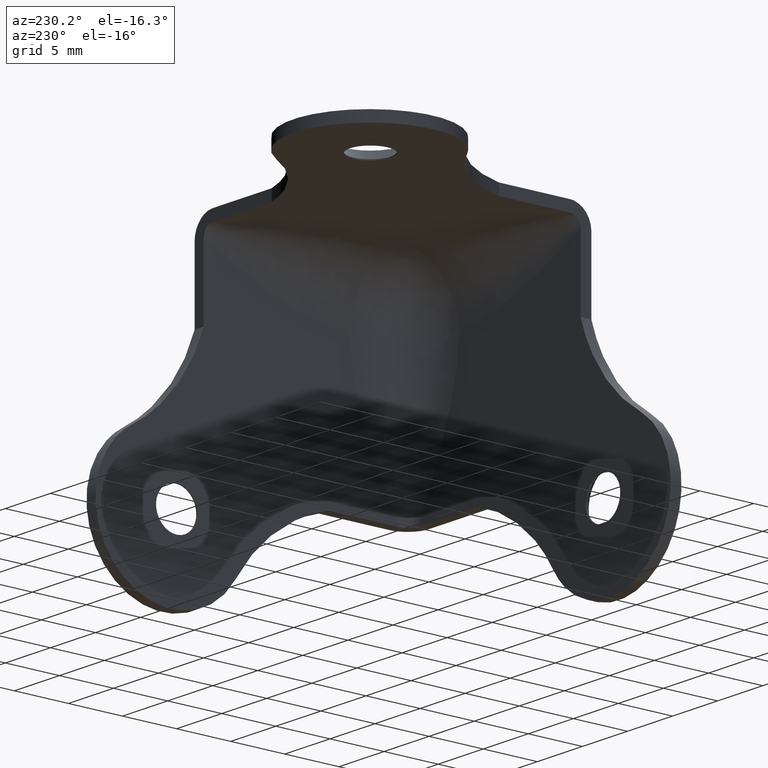
[diagram: clean part render]
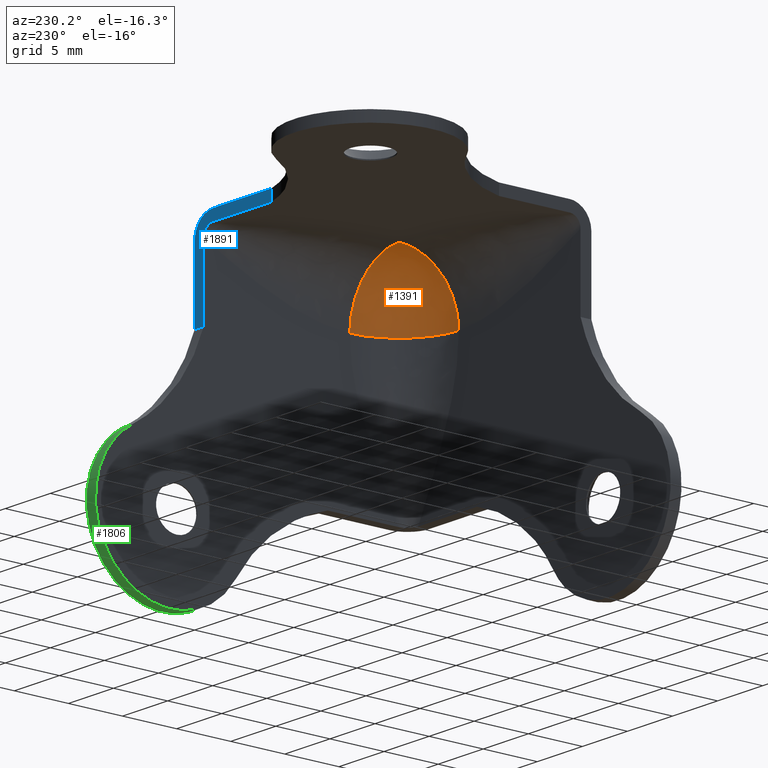
[diagram: same view with three faces highlighted in distinct colors, each labeled with its STEP entity id]
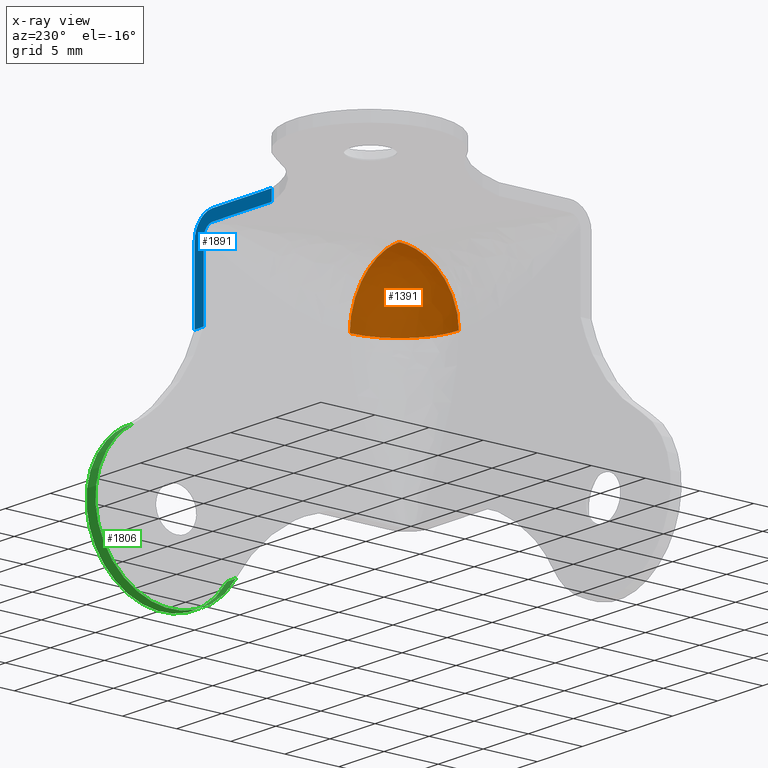
[diagram: x-ray of the same camera — body ghosted, the three highlighted faces saturated]
A machine part, auxiliary view with three faces highlighted in distinct colors.
The next image is the same camera in x-ray (body ghosted, the three faces saturated) — at least one of them is partly hidden behind the body in this view.
Their STEP definitions:

[orange] entity #1391 — the highlighted face is a freeform B-spline surface patch.
#1302=CARTESIAN_POINT('',(-1.0,6.500000000000000,23.500000000000000));
#1303=VERTEX_POINT('',#1302);
#1311=CARTESIAN_POINT('',(-6.500000000000000,6.500000000000000,29.0));
#1312=VERTEX_POINT('',#1311);
#1313=CARTESIAN_POINT('',(-1.0,6.500000000000000,23.500000000000000));
#1314=CARTESIAN_POINT('',(-1.0,6.499999999999999,29.000000000000014));
#1315=CARTESIAN_POINT('',(-6.500000000000000,6.500000000000000,29.0));
#1323=(BOUNDED_CURVE()B_SPLINE_CURVE(2,(#1313,#1314,#1315),.UNSPECIFIED.,.F.,.U.)CURVE()GEOMETRIC_REPRESENTATION_ITEM()QUASI_UNIFORM_CURVE()RATIONAL_B_SPLINE_CURVE((1.0,0.707106781186548,1.0))REPRESENTATION_ITEM(''));
#1324=EDGE_CURVE('',#1303,#1312,#1323,.T.);
#1336=CARTESIAN_POINT('',(-7.485384025050631,1.090361363582088,23.378229122736446));
#1337=CARTESIAN_POINT('',(-6.261903519994567,0.873085130826185,23.130121842651114));
#1338=CARTESIAN_POINT('',(-2.972390697075347,1.969589320634512,21.579430925472661));
#1339=CARTESIAN_POINT('',(-2.659504530841130,4.153528434755771,20.338565872128530));
#1340=CARTESIAN_POINT('',(-6.928036300714799,0.923685963802347,26.272616897139937));
#1341=CARTESIAN_POINT('',(-5.227333166479247,0.615148061266536,26.217044155740130));
#1342=CARTESIAN_POINT('',(-0.798890316061296,2.091295564318619,24.129456578169052));
#1343=CARTESIAN_POINT('',(-1.010627667116836,4.787874755080664,21.870790908376790));
#1344=CARTESIAN_POINT('',(-6.928036300714799,4.900294230256074,29.084503893503356));
#1345=CARTESIAN_POINT('',(-5.227333166479247,4.974301604465713,29.299431542668810));
#1346=CARTESIAN_POINT('',(-0.798890316061296,6.450449107517795,27.211843965097732));
#1347=CARTESIAN_POINT('',(-1.010627667116836,7.937848155358464,24.098158717736265));
#1348=CARTESIAN_POINT('',(-7.201180711222537,6.793835252277758,28.947201708650812));
#1349=CARTESIAN_POINT('',(-5.740257498975113,7.017336073658702,29.123200103431728));
#1350=CARTESIAN_POINT('',(-1.876478928883100,8.305262164440066,27.301797769054033));
#1351=CARTESIAN_POINT('',(-1.797631929250203,9.185228458760591,24.462955165859249));
#1359=(BOUNDED_SURFACE()B_SPLINE_SURFACE(2,2,((#1336,#1340,#1344,#1348),(#1337,#1341,#1345,#1349),(#1338,#1342,#1346,#1350),(#1339,#1343,#1347,#1351)),.UNSPECIFIED.,.F.,.F.,.U.)B_SPLINE_SURFACE_WITH_KNOTS((3,1,3),(3,1,3),(0.0,3.216859003605231,9.642834564198244),(0.0,6.102808453599101,10.067743276920060),.UNSPECIFIED.)GEOMETRIC_REPRESENTATION_ITEM()RATIONAL_B_SPLINE_SURFACE(((1.442429492700841,1.096198883850985,1.096198883850985,1.242341906822535),(1.346230608849856,1.0,1.0,1.146143022971550),(1.346230608849856,1.0,1.0,1.146143022971550),(1.730100562423031,1.383869953573175,1.383869953573175,1.530012976544725)))REPRESENTATION_ITEM('')SURFACE());
#1360=CARTESIAN_POINT('',(-6.500000000000000,1.0,23.500000000000000));
#1361=VERTEX_POINT('',#1360);
#1362=CARTESIAN_POINT('',(-1.0,6.500000000000000,23.500000000000000));
#1363=CARTESIAN_POINT('',(-1.0,1.0,23.499999999999957));
#1364=CARTESIAN_POINT('',(-6.500000000000000,1.0,23.500000000000000));
#1372=(BOUNDED_CURVE()B_SPLINE_CURVE(2,(#1362,#1363,#1364),.UNSPECIFIED.,.F.,.U.)CURVE()GEOMETRIC_REPRESENTATION_ITEM()QUASI_UNIFORM_CURVE()RATIONAL_B_SPLINE_CURVE((1.0,0.707106781186548,1.0))REPRESENTATION_ITEM(''));
#1373=EDGE_CURVE('',#1303,#1361,#1372,.T.);
#1374=ORIENTED_EDGE('',*,*,#1373,.T.);
#1375=CARTESIAN_POINT('',(-6.500000000000000,1.0,23.500000000000000));
#1376=CARTESIAN_POINT('',(-6.499999999999999,1.0,29.000000000000014));
#1377=CARTESIAN_POINT('',(-6.500000000000000,6.500000000000000,29.0));
#1385=(BOUNDED_CURVE()B_SPLINE_CURVE(2,(#1375,#1376,#1377),.UNSPECIFIED.,.F.,.U.)CURVE()GEOMETRIC_REPRESENTATION_ITEM()QUASI_UNIFORM_CURVE()RATIONAL_B_SPLINE_CURVE((1.0,0.707106781186548,1.0))REPRESENTATION_ITEM(''));
#1386=EDGE_CURVE('',#1361,#1312,#1385,.T.);
#1387=ORIENTED_EDGE('',*,*,#1386,.T.);
#1388=ORIENTED_EDGE('',*,*,#1324,.F.);
#1389=EDGE_LOOP('',(#1374,#1387,#1388));
#1390=FACE_OUTER_BOUND('',#1389,.T.);
#1391=ADVANCED_FACE('',(#1390),#1359,.F.);

[blue] entity #1891 — the highlighted face is a freeform B-spline surface patch.
#1048=CARTESIAN_POINT('',(-2.0,20.0,30.0));
#1049=VERTEX_POINT('',#1048);
#1050=CARTESIAN_POINT('',(0.0,20.0,28.0));
#1051=VERTEX_POINT('',#1050);
#1052=CARTESIAN_POINT('',(-2.000000000000000,20.000000000000007,30.0));
#1053=CARTESIAN_POINT('',(0.0,20.0,29.999999999999947));
#1054=CARTESIAN_POINT('',(0.0,20.000000000000007,28.0));
#1062=(BOUNDED_CURVE()B_SPLINE_CURVE(2,(#1052,#1053,#1054),.UNSPECIFIED.,.F.,.U.)CURVE()GEOMETRIC_REPRESENTATION_ITEM()QUASI_UNIFORM_CURVE()RATIONAL_B_SPLINE_CURVE((1.000000000000000,0.707106781186548,1.000000000000000))REPRESENTATION_ITEM(''));
#1063=EDGE_CURVE('',#1049,#1051,#1062,.T.);
#1285=CARTESIAN_POINT('',(-1.0,20.0,28.0));
#1286=VERTEX_POINT('',#1285);
#1287=CARTESIAN_POINT('',(-2.0,20.0,29.0));
#1288=VERTEX_POINT('',#1287);
#1289=CARTESIAN_POINT('',(-1.0,19.999999999999950,27.999999999999979));
#1290=CARTESIAN_POINT('',(-1.0,19.999999999999915,29.000000000000014));
#1291=CARTESIAN_POINT('',(-2.000000000000028,19.999999999999950,29.0));
#1299=(BOUNDED_CURVE()B_SPLINE_CURVE(2,(#1289,#1290,#1291),.UNSPECIFIED.,.F.,.U.)CURVE()GEOMETRIC_REPRESENTATION_ITEM()QUASI_UNIFORM_CURVE()RATIONAL_B_SPLINE_CURVE((1.0,0.707106781186548,1.0))REPRESENTATION_ITEM(''));
#1300=EDGE_CURVE('',#1286,#1288,#1299,.T.);
#1518=CARTESIAN_POINT('',(-8.539727915194000,19.999999597604749,30.0));
#1519=VERTEX_POINT('',#1518);
#1533=CARTESIAN_POINT('',(-8.539727915194000,19.999999597604749,29.0));
#1534=VERTEX_POINT('',#1533);
#1535=CARTESIAN_POINT('',(-8.539727915194000,19.999999597604749,29.0));
#1536=CARTESIAN_POINT('',(-8.539727915194000,19.999999597604749,30.0));
#1537=QUASI_UNIFORM_CURVE('',1,(#1535,#1536),.UNSPECIFIED.,.F.,.U.);
#1538=EDGE_CURVE('',#1534,#1519,#1537,.T.);
#1821=CARTESIAN_POINT('',(0.0,20.0,21.460272000000000));
#1822=VERTEX_POINT('',#1821);
#1837=CARTESIAN_POINT('',(-1.0,20.0,21.460272000000000));
#1838=VERTEX_POINT('',#1837);
#1852=CARTESIAN_POINT('',(-1.0,20.0,21.460272000000000));
#1853=CARTESIAN_POINT('',(0.0,20.0,21.460272000000000));
#1854=QUASI_UNIFORM_CURVE('',1,(#1852,#1853),.UNSPECIFIED.,.F.,.U.);
#1855=EDGE_CURVE('',#1838,#1822,#1854,.T.);
#1860=CARTESIAN_POINT('',(-8.966287628665713,20.0,30.426559397048351));
#1861=CARTESIAN_POINT('',(-8.966287628665713,20.0,21.033712373898290));
#1862=CARTESIAN_POINT('',(0.426559637120597,20.0,30.426559397048351));
#1863=CARTESIAN_POINT('',(0.426559637120597,20.0,21.033712373898290));
#1864=B_SPLINE_SURFACE_WITH_KNOTS('',1,1,((#1860,#1862),(#1861,#1863)),.UNSPECIFIED.,.F.,.F.,.U.,(2,2),(2,2),(0.0,9.392847023150058),(0.0,9.392847265786310),.UNSPECIFIED.);
#1865=CARTESIAN_POINT('',(-8.539727915194000,19.999999597604749,30.0));
#1866=CARTESIAN_POINT('',(-2.0,20.0,30.0));
#1867=QUASI_UNIFORM_CURVE('',1,(#1865,#1866),.UNSPECIFIED.,.F.,.U.);
#1868=EDGE_CURVE('',#1519,#1049,#1867,.T.);
#1869=ORIENTED_EDGE('',*,*,#1868,.T.);
#1870=ORIENTED_EDGE('',*,*,#1063,.T.);
#1871=CARTESIAN_POINT('',(0.0,20.0,28.0));
#1872=CARTESIAN_POINT('',(0.0,20.0,21.460272000000000));
#1873=QUASI_UNIFORM_CURVE('',1,(#1871,#1872),.UNSPECIFIED.,.F.,.U.);
#1874=EDGE_CURVE('',#1051,#1822,#1873,.T.);
#1875=ORIENTED_EDGE('',*,*,#1874,.T.);
#1876=ORIENTED_EDGE('',*,*,#1855,.F.);
#1877=CARTESIAN_POINT('',(-1.0,20.0,28.0));
#1878=CARTESIAN_POINT('',(-1.0,20.0,21.460272000000000));
#1879=QUASI_UNIFORM_CURVE('',1,(#1877,#1878),.UNSPECIFIED.,.F.,.U.);
#1880=EDGE_CURVE('',#1286,#1838,#1879,.T.);
#1881=ORIENTED_EDGE('',*,*,#1880,.F.);
#1882=ORIENTED_EDGE('',*,*,#1300,.T.);
#1883=CARTESIAN_POINT('',(-8.539727915194000,19.999999597604749,29.0));
#1884=CARTESIAN_POINT('',(-2.0,20.0,29.0));
#1885=QUASI_UNIFORM_CURVE('',1,(#1883,#1884),.UNSPECIFIED.,.F.,.U.);
#1886=EDGE_CURVE('',#1534,#1288,#1885,.T.);
#1887=ORIENTED_EDGE('',*,*,#1886,.F.);
#1888=ORIENTED_EDGE('',*,*,#1538,.T.);
#1889=EDGE_LOOP('',(#1869,#1870,#1875,#1876,#1881,#1882,#1887,#1888));
#1890=FACE_OUTER_BOUND('',#1889,.T.);
#1891=ADVANCED_FACE('',(#1890),#1864,.F.);

[green] entity #1806 — the highlighted face is a freeform B-spline surface patch.
#1695=CARTESIAN_POINT('',(0.0,17.002200152242001,3.390789977538885));
#1696=VERTEX_POINT('',#1695);
#1719=CARTESIAN_POINT('',(-1.0,17.002200152242001,3.390789977538885));
#1720=VERTEX_POINT('',#1719);
#1734=CARTESIAN_POINT('',(-1.0,17.002200152242001,3.390789977538885));
#1735=CARTESIAN_POINT('',(0.0,17.002200152242001,3.390789977538885));
#1736=QUASI_UNIFORM_CURVE('',1,(#1734,#1735),.UNSPECIFIED.,.F.,.U.);
#1737=EDGE_CURVE('',#1720,#1696,#1736,.T.);
#1742=CARTESIAN_POINT('',(-1.025000000000000,26.442959212182231,13.094754454713449));
#1743=CARTESIAN_POINT('',(0.025625000000000,26.442959212182231,13.094754454713449));
#1744=CARTESIAN_POINT('',(-1.025000000000000,34.679547136052165,8.441862122438165));
#1745=CARTESIAN_POINT('',(0.025625000000000,34.679547136052165,8.441862122438165));
#1746=CARTESIAN_POINT('',(-1.025000000000000,27.821818817312799,1.925547981012318));
#1747=CARTESIAN_POINT('',(0.025625000000000,27.821818817312799,1.925547981012318));
#1748=CARTESIAN_POINT('',(-1.025000000000000,20.964090498573437,-4.590766160413525));
#1749=CARTESIAN_POINT('',(0.025625000000000,20.964090498573437,-4.590766160413525));
#1750=CARTESIAN_POINT('',(-1.025000000000000,16.737514012853939,3.872497919936865));
#1751=CARTESIAN_POINT('',(0.025625000000000,16.737514012853939,3.872497919936865));
#1759=(BOUNDED_SURFACE()B_SPLINE_SURFACE(1,2,((#1742,#1744,#1746,#1748,#1750),(#1743,#1745,#1747,#1749,#1751)),.UNSPECIFIED.,.F.,.F.,.U.)B_SPLINE_SURFACE_WITH_KNOTS((2,2),(3,2,3),(0.0,1.0),(0.0,14.113161841091410,28.226323682182809),.UNSPECIFIED.)GEOMETRIC_REPRESENTATION_ITEM()RATIONAL_B_SPLINE_SURFACE(((1.0,0.594822786751341,1.0,0.594822786751341,1.0),(1.0,0.594822786751341,1.0,0.594822786751341,1.0)))REPRESENTATION_ITEM('')SURFACE());
#1760=CARTESIAN_POINT('',(0.0,26.609209523297601,12.997799754804120));
#1761=VERTEX_POINT('',#1760);
#1762=CARTESIAN_POINT('',(0.0,17.002200152241979,3.390789977538872));
#1763=CARTESIAN_POINT('',(0.0,19.497061530084210,-0.755180774807572));
#1764=CARTESIAN_POINT('',(0.0,24.257131160213412,0.113809380650250));
#1765=CARTESIAN_POINT('',(0.0,29.017200790342610,0.982799536108073));
#1766=CARTESIAN_POINT('',(0.0,29.886190687552769,5.742869213382516));
#1767=CARTESIAN_POINT('',(0.0,30.755180584762936,10.502938890656962));
#1768=CARTESIAN_POINT('',(0.0,26.609209523297601,12.997799754804120));
#1776=(BOUNDED_CURVE()B_SPLINE_CURVE(2,(#1762,#1763,#1764,#1765,#1766,#1767,#1768),.UNSPECIFIED.,.F.,.U.)B_SPLINE_CURVE_WITH_KNOTS((3,2,2,3),(0.0,0.333333333333333,0.666666666666667,1.0),.UNSPECIFIED.)CURVE()GEOMETRIC_REPRESENTATION_ITEM()RATIONAL_B_SPLINE_CURVE((1.0,0.822599706248646,1.0,0.822599706248646,1.0,0.822599706248646,1.0))REPRESENTATION_ITEM(''));
#1777=EDGE_CURVE('',#1696,#1761,#1776,.T.);
#1778=ORIENTED_EDGE('',*,*,#1777,.F.);
#1779=ORIENTED_EDGE('',*,*,#1737,.F.);
#1780=CARTESIAN_POINT('',(-1.0,26.609209523297601,12.997799754804120));
#1781=VERTEX_POINT('',#1780);
#1782=CARTESIAN_POINT('',(-1.0,17.002200152241979,3.390789977538872));
#1783=CARTESIAN_POINT('',(-1.0,19.497061530084210,-0.755180774807572));
#1784=CARTESIAN_POINT('',(-1.0,24.257131160213412,0.113809380650250));
#1785=CARTESIAN_POINT('',(-1.0,29.017200790342610,0.982799536108073));
#1786=CARTESIAN_POINT('',(-1.0,29.886190687552769,5.742869213382516));
#1787=CARTESIAN_POINT('',(-1.0,30.755180584762936,10.502938890656962));
#1788=CARTESIAN_POINT('',(-1.0,26.609209523297601,12.997799754804120));
#1796=(BOUNDED_CURVE()B_SPLINE_CURVE(2,(#1782,#1783,#1784,#1785,#1786,#1787,#1788),.UNSPECIFIED.,.F.,.U.)B_SPLINE_CURVE_WITH_KNOTS((3,2,2,3),(0.0,0.333333333333333,0.666666666666667,1.0),.UNSPECIFIED.)CURVE()GEOMETRIC_REPRESENTATION_ITEM()RATIONAL_B_SPLINE_CURVE((1.0,0.822599706248646,1.0,0.822599706248646,1.0,0.822599706248646,1.0))REPRESENTATION_ITEM(''));
#1797=EDGE_CURVE('',#1720,#1781,#1796,.T.);
#1798=ORIENTED_EDGE('',*,*,#1797,.T.);
#1799=CARTESIAN_POINT('',(-1.0,26.609209523297601,12.997799754804120));
#1800=CARTESIAN_POINT('',(0.0,26.609209523297601,12.997799754804120));
#1801=QUASI_UNIFORM_CURVE('',1,(#1799,#1800),.UNSPECIFIED.,.F.,.U.);
#1802=EDGE_CURVE('',#1781,#1761,#1801,.T.);
#1803=ORIENTED_EDGE('',*,*,#1802,.T.);
#1804=EDGE_LOOP('',(#1778,#1779,#1798,#1803));
#1805=FACE_OUTER_BOUND('',#1804,.T.);
#1806=ADVANCED_FACE('',(#1805),#1759,.T.);